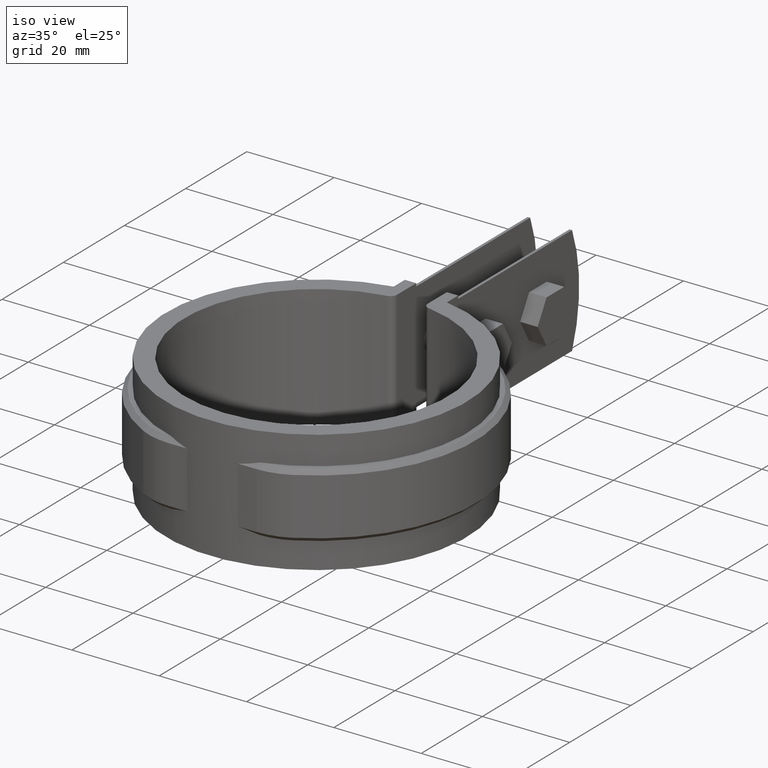
[diagram: clean part render]
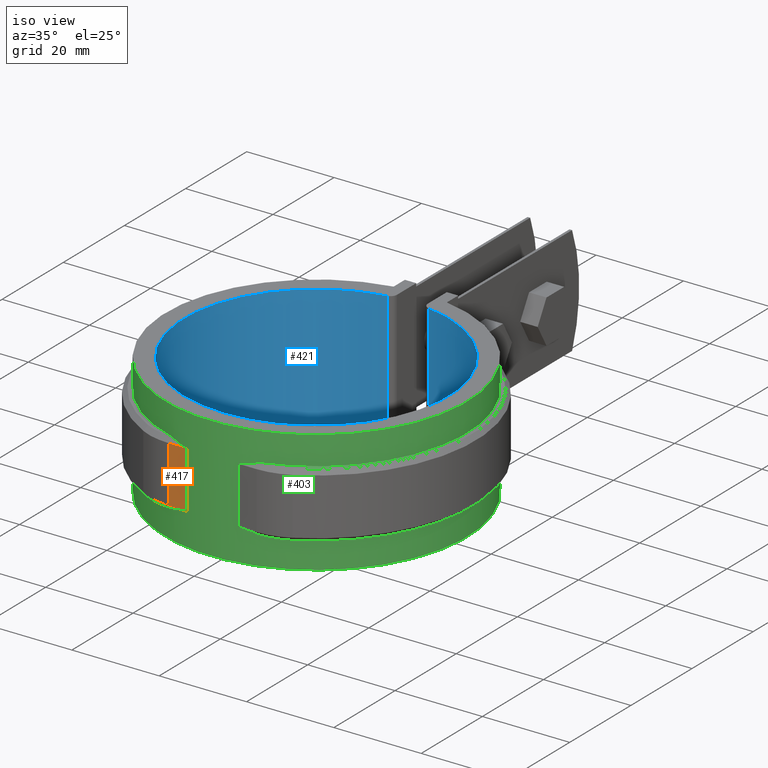
[diagram: same view with three faces highlighted in distinct colors, each labeled with its STEP entity id]
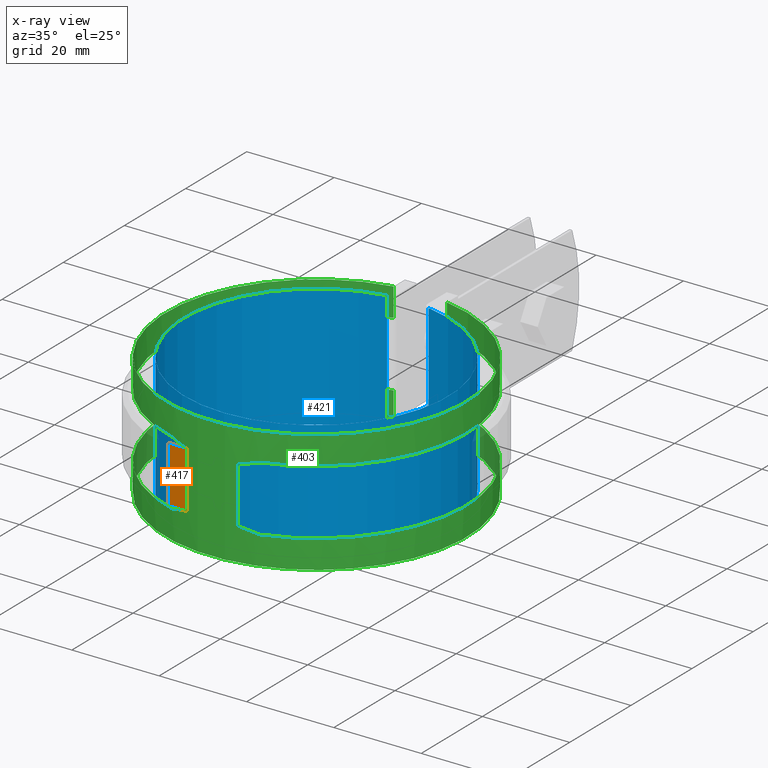
[diagram: x-ray of the same camera — body ghosted, the three highlighted faces saturated]
A machine part, iso view with three faces highlighted in distinct colors.
The next image is the same camera in x-ray (body ghosted, the three faces saturated) — at least one of them is partly hidden behind the body in this view.
Their STEP definitions:

[orange] entity #417 — the highlighted planar face has unit normal (-0, -1, 0).
#417 = ADVANCED_FACE( '', ( #741 ), #742, .T. );
#741 = FACE_OUTER_BOUND( '', #1523, .T. );
#742 = PLANE( '', #1524 );
#1523 = EDGE_LOOP( '', ( #3533, #3534, #3535, #3536 ) );
#1524 = AXIS2_PLACEMENT_3D( '', #3537, #3538, #3539 );
#3533 = ORIENTED_EDGE( '', *, *, #4773, .F. );
#3534 = ORIENTED_EDGE( '', *, *, #4774, .T. );
#3535 = ORIENTED_EDGE( '', *, *, #4747, .T. );
#3536 = ORIENTED_EDGE( '', *, *, #4764, .T. );
#3537 = CARTESIAN_POINT( '', ( -10.0516180289543, -34.0000000000000, -20.0000000000000 ) );
#3538 = DIRECTION( '', ( -2.77555756156289E-017, -1.00000000000000, 0.000000000000000 ) );
#3539 = DIRECTION( '', ( -1.00000000000000, 2.77555756156289E-017, 0.000000000000000 ) );
#4747 = EDGE_CURVE( '', #5496, #5494, #5497, .T. );
#4764 = EDGE_CURVE( '', #5494, #5521, #5523, .T. );
#4773 = EDGE_CURVE( '', #5534, #5521, #5536, .T. );
#4774 = EDGE_CURVE( '', #5534, #5496, #5537, .T. );
#5494 = VERTEX_POINT( '', #8411 );
#5496 = VERTEX_POINT( '', #8413 );
#5497 = LINE( '', #8414, #8415 );
#5521 = VERTEX_POINT( '', #8448 );
#5523 = LINE( '', #8451, #8452 );
#5534 = VERTEX_POINT( '', #8466 );
#5536 = LINE( '', #8468, #8469 );
#5537 = LINE( '', #8470, #8471 );
#8411 = CARTESIAN_POINT( '', ( -5.82280216047221, -34.0000000000000, -6.00000000000000 ) );
#8413 = CARTESIAN_POINT( '', ( -5.82280216047221, -34.0000000000000, -19.0000000000000 ) );
#8414 = CARTESIAN_POINT( '', ( -5.82280216047221, -34.0000000000000, -20.0000000000000 ) );
#8415 = VECTOR( '', #9315, 1000.00000000000 );
#8448 = CARTESIAN_POINT( '', ( -10.0516180289544, -34.0000000000000, -6.00000000000000 ) );
#8451 = CARTESIAN_POINT( '', ( -10.0516180289544, -34.0000000000000, -6.00000000000000 ) );
#8452 = VECTOR( '', #9344, 1000.00000000000 );
#8466 = CARTESIAN_POINT( '', ( -10.0516180289544, -34.0000000000000, -19.0000000000000 ) );
#8468 = CARTESIAN_POINT( '', ( -10.0516180289544, -34.0000000000000, -20.0000000000000 ) );
#8469 = VECTOR( '', #9363, 1000.00000000000 );
#8470 = CARTESIAN_POINT( '', ( -10.0516180289543, -34.0000000000000, -19.0000000000000 ) );
#8471 = VECTOR( '', #9364, 1000.00000000000 );
#9315 = DIRECTION( '', ( 0.000000000000000, 0.000000000000000, 1.00000000000000 ) );
#9344 = DIRECTION( '', ( -1.00000000000000, 2.77555756156289E-017, 0.000000000000000 ) );
#9363 = DIRECTION( '', ( 0.000000000000000, 0.000000000000000, 1.00000000000000 ) );
#9364 = DIRECTION( '', ( 1.00000000000000, -2.77555756156289E-017, 0.000000000000000 ) );

[blue] entity #421 — the highlighted cylindrical surface (partial cylindrical patch) has radius 30.25 mm, axis along (0, 0, -1).
#421 = ADVANCED_FACE( '', ( #749 ), #750, .F. );
#749 = FACE_OUTER_BOUND( '', #1531, .T. );
#750 = CYLINDRICAL_SURFACE( '', #1532, 30.2500000000000 );
#1531 = EDGE_LOOP( '', ( #3561, #3562, #3563, #3564 ) );
#1532 = AXIS2_PLACEMENT_3D( '', #3565, #3566, #3567 );
#3561 = ORIENTED_EDGE( '', *, *, #4729, .T. );
#3562 = ORIENTED_EDGE( '', *, *, #4779, .T. );
#3563 = ORIENTED_EDGE( '', *, *, #4737, .F. );
#3564 = ORIENTED_EDGE( '', *, *, #4781, .T. );
#3565 = CARTESIAN_POINT( '', ( 0.000000000000000, 0.000000000000000, -114.978801193109 ) );
#3566 = DIRECTION( '', ( 0.000000000000000, 0.000000000000000, -1.00000000000000 ) );
#3567 = DIRECTION( '', ( -1.00000000000000, 0.000000000000000, 0.000000000000000 ) );
#4729 = EDGE_CURVE( '', #5465, #5463, #5466, .F. );
#4737 = EDGE_CURVE( '', #5476, #5478, #5479, .F. );
#4779 = EDGE_CURVE( '', #5463, #5478, #5544, .F. );
#4781 = EDGE_CURVE( '', #5476, #5465, #5546, .T. );
#5463 = VERTEX_POINT( '', #8375 );
#5465 = VERTEX_POINT( '', #8377 );
#5466 = CIRCLE( '', #8378, 30.2500000000000 );
#5476 = VERTEX_POINT( '', #8391 );
#5478 = VERTEX_POINT( '', #8393 );
#5479 = CIRCLE( '', #8394, 30.2500000000000 );
#5544 = LINE( '', #8481, #8482 );
#5546 = LINE( '', #8485, #8486 );
#8375 = CARTESIAN_POINT( '', ( 4.76377952755906, 29.8725443277403, 1.50000000000000 ) );
#8377 = CARTESIAN_POINT( '', ( -4.76377952755905, 29.8725443277403, 1.50000000000000 ) );
#8378 = AXIS2_PLACEMENT_3D( '', #9271, #9272, #9273 );
#8391 = CARTESIAN_POINT( '', ( -4.76377952755905, 29.8725443277403, -26.5000000000000 ) );
#8393 = CARTESIAN_POINT( '', ( 4.76377952755906, 29.8725443277403, -26.5000000000000 ) );
#8394 = AXIS2_PLACEMENT_3D( '', #9289, #9290, #9291 );
#8481 = CARTESIAN_POINT( '', ( 4.76377952755906, 29.8725443277403, -114.978801193109 ) );
#8482 = VECTOR( '', #9371, 1000.00000000000 );
#8485 = CARTESIAN_POINT( '', ( -4.76377952755905, 29.8725443277403, -114.978801193109 ) );
#8486 = VECTOR( '', #9373, 1000.00000000000 );
#9271 = CARTESIAN_POINT( '', ( 0.000000000000000, 0.000000000000000, 1.50000000000000 ) );
#9272 = DIRECTION( '', ( 0.000000000000000, 0.000000000000000, -1.00000000000000 ) );
#9273 = DIRECTION( '', ( -1.00000000000000, 0.000000000000000, 0.000000000000000 ) );
#9289 = CARTESIAN_POINT( '', ( 0.000000000000000, 0.000000000000000, -26.5000000000000 ) );
#9290 = DIRECTION( '', ( 0.000000000000000, 0.000000000000000, -1.00000000000000 ) );
#9291 = DIRECTION( '', ( -1.00000000000000, 0.000000000000000, 0.000000000000000 ) );
#9371 = DIRECTION( '', ( 0.000000000000000, 0.000000000000000, 1.00000000000000 ) );
#9373 = DIRECTION( '', ( 0.000000000000000, 0.000000000000000, 1.00000000000000 ) );

[green] entity #403 — the highlighted cylindrical surface (partial cylindrical patch) has radius 34.495 mm, axis along (0, 0, -1).
#403 = ADVANCED_FACE( '', ( #713 ), #714, .T. );
#713 = FACE_OUTER_BOUND( '', #1495, .T. );
#714 = CYLINDRICAL_SURFACE( '', #1496, 34.4950000000000 );
#1495 = EDGE_LOOP( '', ( #3421, #3422, #3423, #3424, #3425, #3426, #3427, #3428, #3429, #3430, #3431, #3432, #3433, #3434, #3435, #3436 ) );
#1496 = AXIS2_PLACEMENT_3D( '', #3437, #3438, #3439 );
#3421 = ORIENTED_EDGE( '', *, *, #4740, .F. );
#3422 = ORIENTED_EDGE( '', *, *, #4741, .T. );
#3423 = ORIENTED_EDGE( '', *, *, #4742, .T. );
#3424 = ORIENTED_EDGE( '', *, *, #4743, .T. );
#3425 = ORIENTED_EDGE( '', *, *, #4744, .T. );
#3426 = ORIENTED_EDGE( '', *, *, #4720, .T. );
#3427 = ORIENTED_EDGE( '', *, *, #4732, .F. );
#3428 = ORIENTED_EDGE( '', *, *, #4589, .F. );
#3429 = ORIENTED_EDGE( '', *, *, #4745, .F. );
#3430 = ORIENTED_EDGE( '', *, *, #4746, .T. );
#3431 = ORIENTED_EDGE( '', *, *, #4747, .F. );
#3432 = ORIENTED_EDGE( '', *, *, #4748, .T. );
#3433 = ORIENTED_EDGE( '', *, *, #4749, .T. );
#3434 = ORIENTED_EDGE( '', *, *, #4583, .F. );
#3435 = ORIENTED_EDGE( '', *, *, #4734, .T. );
#3436 = ORIENTED_EDGE( '', *, *, #4725, .T. );
#3437 = CARTESIAN_POINT( '', ( 0.000000000000000, 0.000000000000000, -26.5000000000000 ) );
#3438 = DIRECTION( '', ( 0.000000000000000, 0.000000000000000, -1.00000000000000 ) );
#3439 = DIRECTION( '', ( -1.00000000000000, 6.07153216591883E-017, 0.000000000000000 ) );
#4583 = EDGE_CURVE( '', #5209, #5211, #5212, .T. );
#4589 = EDGE_CURVE( '', #5221, #5205, #5223, .T. );
#4720 = EDGE_CURVE( '', #5449, #5447, #5450, .T. );
#4725 = EDGE_CURVE( '', #5442, #5456, #5458, .T. );
#4732 = EDGE_CURVE( '', #5205, #5447, #5470, .T. );
#4734 = EDGE_CURVE( '', #5209, #5442, #5473, .T. );
#4740 = EDGE_CURVE( '', #5483, #5456, #5484, .T. );
#4741 = EDGE_CURVE( '', #5483, #5485, #5486, .F. );
#4742 = EDGE_CURVE( '', #5485, #5487, #5488, .T. );
#4743 = EDGE_CURVE( '', #5487, #5489, #5490, .T. );
#4744 = EDGE_CURVE( '', #5489, #5449, #5491, .T. );
#4745 = EDGE_CURVE( '', #5492, #5221, #5493, .T. );
#4746 = EDGE_CURVE( '', #5492, #5494, #5495, .T. );
#4747 = EDGE_CURVE( '', #5496, #5494, #5497, .T. );
#4748 = EDGE_CURVE( '', #5496, #5498, #5499, .F. );
#4749 = EDGE_CURVE( '', #5498, #5211, #5500, .T. );
#5205 = VERTEX_POINT( '', #7091 );
#5209 = VERTEX_POINT( '', #7097 );
#5211 = VERTEX_POINT( '', #7100 );
#5212 = LINE( '', #7101, #7102 );
#5221 = VERTEX_POINT( '', #7119 );
#5223 = LINE( '', #7122, #7123 );
#5442 = VERTEX_POINT( '', #8341 );
#5447 = VERTEX_POINT( '', #8348 );
#5449 = VERTEX_POINT( '', #8351 );
#5450 = LINE( '', #8352, #8353 );
#5456 = VERTEX_POINT( '', #8364 );
#5458 = LINE( '', #8367, #8368 );
#5470 = CIRCLE( '', #8383, 34.4950000000000 );
#5473 = CIRCLE( '', #8387, 34.4950000000000 );
#5483 = VERTEX_POINT( '', #8399 );
#5484 = CIRCLE( '', #8400, 34.4950000000000 );
#5485 = VERTEX_POINT( '', #8401 );
#5486 = ELLIPSE( '', #8402, 48.7832968340597, 34.4950000000000 );
#5487 = VERTEX_POINT( '', #8403 );
#5488 = LINE( '', #8404, #8405 );
#5489 = VERTEX_POINT( '', #8406 );
#5490 = ELLIPSE( '', #8407, 48.7832968340597, 34.4950000000000 );
#5491 = CIRCLE( '', #8408, 34.4950000000000 );
#5492 = VERTEX_POINT( '', #8409 );
#5493 = CIRCLE( '', #8410, 34.4950000000000 );
#5494 = VERTEX_POINT( '', #8411 );
#5495 = ELLIPSE( '', #8412, 48.7832968340597, 34.4950000000000 );
#5496 = VERTEX_POINT( '', #8413 );
#5497 = LINE( '', #8414, #8415 );
#5498 = VERTEX_POINT( '', #8416 );
#5499 = ELLIPSE( '', #8417, 48.7832968340597, 34.4950000000000 );
#5500 = CIRCLE( '', #8418, 34.4950000000000 );
#7091 = CARTESIAN_POINT( '', ( -6.10000000000000, 33.9513626383390, 1.50000000000000 ) );
#7097 = CARTESIAN_POINT( '', ( -6.10000000000000, 33.9513626383390, -26.5000000000000 ) );
#7100 = CARTESIAN_POINT( '', ( -6.09999999999998, 33.9513626383390, -20.0000000000000 ) );
#7101 = CARTESIAN_POINT( '', ( -6.10000000000000, 33.9513626383390, -26.5000000000000 ) );
#7102 = VECTOR( '', #9132, 1000.00000000000 );
#7119 = CARTESIAN_POINT( '', ( -6.09999999999998, 33.9513626383390, -5.00000000000000 ) );
#7122 = CARTESIAN_POINT( '', ( -6.10000000000000, 33.9513626383390, -26.5000000000000 ) );
#7123 = VECTOR( '', #9136, 1000.00000000000 );
#8341 = CARTESIAN_POINT( '', ( 6.09999999999998, 33.9513626383390, -26.5000000000000 ) );
#8348 = CARTESIAN_POINT( '', ( 6.09999999999998, 33.9513626383390, 1.50000000000000 ) );
#8351 = CARTESIAN_POINT( '', ( 6.09999999999997, 33.9513626383390, -5.00000000000000 ) );
#8352 = CARTESIAN_POINT( '', ( 6.09999999999998, 33.9513626383390, -26.5000000000000 ) );
#8353 = VECTOR( '', #9261, 1000.00000000000 );
#8364 = CARTESIAN_POINT( '', ( 6.09999999999998, 33.9513626383390, -20.0000000000000 ) );
#8367 = CARTESIAN_POINT( '', ( 6.09999999999998, 33.9513626383390, -26.5000000000000 ) );
#8368 = VECTOR( '', #9265, 1000.00000000000 );
#8383 = AXIS2_PLACEMENT_3D( '', #9278, #9279, #9280 );
#8387 = AXIS2_PLACEMENT_3D( '', #9282, #9283, #9284 );
#8399 = CARTESIAN_POINT( '', ( 10.0451493269139, -33.0000000000000, -20.0000000000000 ) );
#8400 = AXIS2_PLACEMENT_3D( '', #9296, #9297, #9298 );
#8401 = CARTESIAN_POINT( '', ( 5.82280216047220, -34.0000000000000, -19.0000000000000 ) );
#8402 = AXIS2_PLACEMENT_3D( '', #9299, #9300, #9301 );
#8403 = CARTESIAN_POINT( '', ( 5.82280216047220, -34.0000000000000, -6.00000000000000 ) );
#8404 = CARTESIAN_POINT( '', ( 5.82280216047220, -34.0000000000000, -20.0000000000000 ) );
#8405 = VECTOR( '', #9302, 1000.00000000000 );
#8406 = CARTESIAN_POINT( '', ( 10.0451493269139, -33.0000000000000, -5.00000000000000 ) );
#8407 = AXIS2_PLACEMENT_3D( '', #9303, #9304, #9305 );
#8408 = AXIS2_PLACEMENT_3D( '', #9306, #9307, #9308 );
#8409 = CARTESIAN_POINT( '', ( -10.0451493269139, -33.0000000000000, -5.00000000000000 ) );
#8410 = AXIS2_PLACEMENT_3D( '', #9309, #9310, #9311 );
#8411 = CARTESIAN_POINT( '', ( -5.82280216047221, -34.0000000000000, -6.00000000000000 ) );
#8412 = AXIS2_PLACEMENT_3D( '', #9312, #9313, #9314 );
#8413 = CARTESIAN_POINT( '', ( -5.82280216047221, -34.0000000000000, -19.0000000000000 ) );
#8414 = CARTESIAN_POINT( '', ( -5.82280216047221, -34.0000000000000, -20.0000000000000 ) );
#8415 = VECTOR( '', #9315, 1000.00000000000 );
#8416 = CARTESIAN_POINT( '', ( -10.0451493269139, -33.0000000000000, -20.0000000000000 ) );
#8417 = AXIS2_PLACEMENT_3D( '', #9316, #9317, #9318 );
#8418 = AXIS2_PLACEMENT_3D( '', #9319, #9320, #9321 );
#9132 = DIRECTION( '', ( 0.000000000000000, 0.000000000000000, 1.00000000000000 ) );
#9136 = DIRECTION( '', ( 0.000000000000000, 0.000000000000000, 1.00000000000000 ) );
#9261 = DIRECTION( '', ( 0.000000000000000, 0.000000000000000, 1.00000000000000 ) );
#9265 = DIRECTION( '', ( 0.000000000000000, 0.000000000000000, 1.00000000000000 ) );
#9278 = CARTESIAN_POINT( '', ( 0.000000000000000, 0.000000000000000, 1.50000000000000 ) );
#9279 = DIRECTION( '', ( 0.000000000000000, 0.000000000000000, 1.00000000000000 ) );
#9280 = DIRECTION( '', ( 1.00000000000000, -6.07153216591883E-017, 0.000000000000000 ) );
#9282 = CARTESIAN_POINT( '', ( 0.000000000000000, 0.000000000000000, -26.5000000000000 ) );
#9283 = DIRECTION( '', ( 0.000000000000000, 0.000000000000000, 1.00000000000000 ) );
#9284 = DIRECTION( '', ( 1.00000000000000, -6.07153216591883E-017, 0.000000000000000 ) );
#9296 = CARTESIAN_POINT( '', ( -8.67361737988404E-016, -6.93889390390723E-015, -20.0000000000000 ) );
#9297 = DIRECTION( '', ( 0.000000000000000, 0.000000000000000, 1.00000000000000 ) );
#9298 = DIRECTION( '', ( 1.00000000000000, -2.77555756156289E-017, 0.000000000000000 ) );
#9299 = CARTESIAN_POINT( '', ( 0.000000000000000, 0.000000000000000, -52.9999999999998 ) );
#9300 = DIRECTION( '', ( 1.96261557335471E-017, 0.707106781186545, 0.707106781186550 ) );
#9301 = DIRECTION( '', ( -1.96261557335473E-017, -0.707106781186550, 0.707106781186545 ) );
#9302 = DIRECTION( '', ( 0.000000000000000, 0.000000000000000, 1.00000000000000 ) );
#9303 = CARTESIAN_POINT( '', ( 0.000000000000000, 0.000000000000000, 27.9999999999997 ) );
#9304 = DIRECTION( '', ( -1.96261557335471E-017, -0.707106781186545, 0.707106781186551 ) );
#9305 = DIRECTION( '', ( 1.96261557335473E-017, 0.707106781186550, 0.707106781186545 ) );
#9306 = CARTESIAN_POINT( '', ( -8.67361737988404E-016, -6.93889390390723E-015, -5.00000000000000 ) );
#9307 = DIRECTION( '', ( 0.000000000000000, 0.000000000000000, 1.00000000000000 ) );
#9308 = DIRECTION( '', ( 1.00000000000000, -2.77555756156289E-017, 0.000000000000000 ) );
#9309 = CARTESIAN_POINT( '', ( -8.67361737988404E-016, -6.93889390390723E-015, -5.00000000000000 ) );
#9310 = DIRECTION( '', ( 0.000000000000000, 0.000000000000000, -1.00000000000000 ) );
#9311 = DIRECTION( '', ( 1.00000000000000, -2.77555756156289E-017, 0.000000000000000 ) );
#9312 = CARTESIAN_POINT( '', ( 0.000000000000000, 0.000000000000000, 27.9999999999997 ) );
#9313 = DIRECTION( '', ( -1.96261557335471E-017, -0.707106781186544, 0.707106781186551 ) );
#9314 = DIRECTION( '', ( 1.96261557335473E-017, 0.707106781186551, 0.707106781186544 ) );
#9315 = DIRECTION( '', ( 0.000000000000000, 0.000000000000000, 1.00000000000000 ) );
#9316 = CARTESIAN_POINT( '', ( 0.000000000000000, 0.000000000000000, -52.9999999999998 ) );
#9317 = DIRECTION( '', ( 1.96261557335471E-017, 0.707106781186545, 0.707106781186550 ) );
#9318 = DIRECTION( '', ( -1.96261557335473E-017, -0.707106781186550, 0.707106781186545 ) );
#9319 = CARTESIAN_POINT( '', ( -8.67361737988404E-016, -6.93889390390723E-015, -20.0000000000000 ) );
#9320 = DIRECTION( '', ( 0.000000000000000, 0.000000000000000, -1.00000000000000 ) );
#9321 = DIRECTION( '', ( 1.00000000000000, -2.77555756156289E-017, 0.000000000000000 ) );